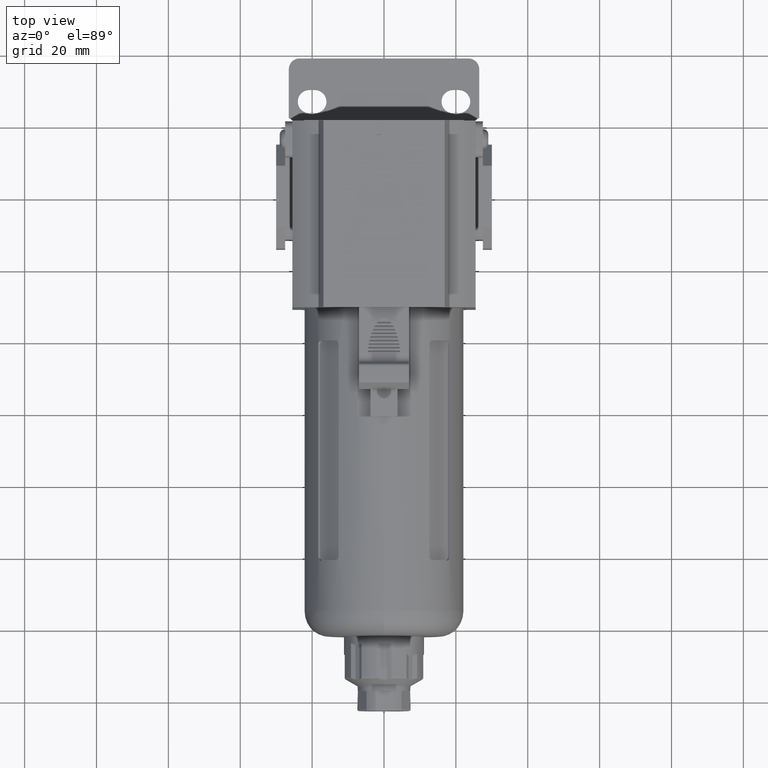
[diagram: clean part render]
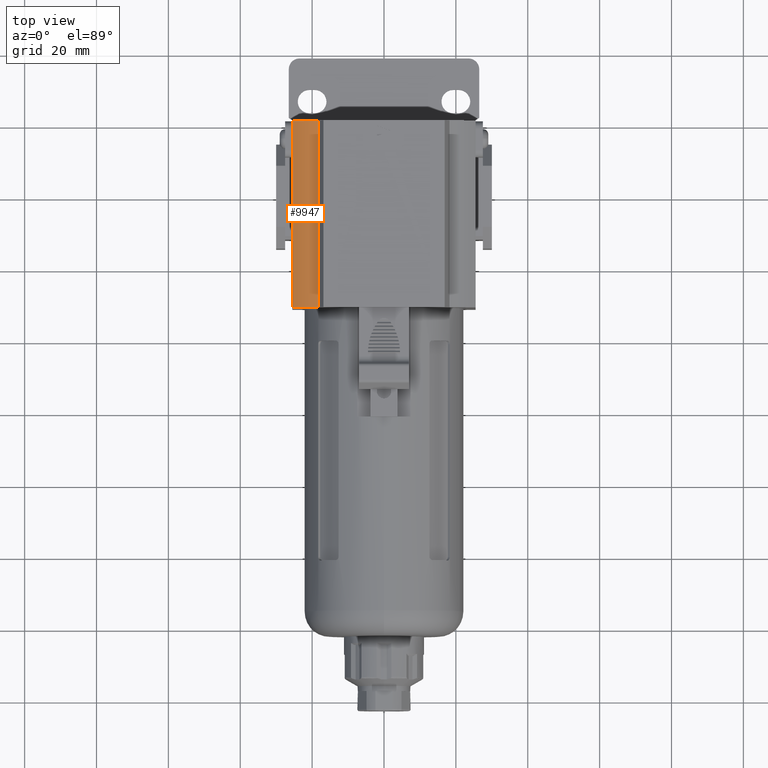
[diagram: same view with one face highlighted and labeled with its STEP entity id]
A machine part, top view. The second image highlights one B-rep face of the part: STEP entity #9947.
In plain terms, the highlighted cylindrical surface (partial cylindrical patch) has radius 20 mm, axis along (-0, 1, -0).
Its self-contained STEP definition (entity closure, byte-faithful):
#122 = CARTESIAN_POINT ( 'NONE',  ( -12.44075424135393600, 21.00000000000000000, 3.852191570551038300 ) ) ;
#179 = VECTOR ( 'NONE', #1844, 1000.000000000000000 ) ;
#217 = VECTOR ( 'NONE', #12050, 1000.000000000000000 ) ;
#279 = DIRECTION ( 'NONE',  ( 9.130123557772670800E-017, -1.000000000000000000, -0.0000000000000000000 ) ) ;
#316 = EDGE_CURVE ( 'NONE', #1362, #476, #10180, .T. ) ;
#476 = VERTEX_POINT ( 'NONE', #6152 ) ;
#630 = FACE_OUTER_BOUND ( 'NONE', #8295, .T. ) ;
#664 = CARTESIAN_POINT ( 'NONE',  ( -12.44075424135393200, -31.00000000000000400, 3.852191570551038300 ) ) ;
#1080 = DIRECTION ( 'NONE',  ( -1.000000000000000000, -1.734723475976807300E-016, 0.0000000000000000000 ) ) ;
#1362 = VERTEX_POINT ( 'NONE', #6516 ) ;
#1653 = DIRECTION ( 'NONE',  ( -9.130123557772672000E-017, 1.000000000000000000, -0.0000000000000000000 ) ) ;
#1772 = VERTEX_POINT ( 'NONE', #7505 ) ;
#1844 = DIRECTION ( 'NONE',  ( -9.130123557772672000E-017, 1.000000000000000000, -0.0000000000000000000 ) ) ;
#3980 = CIRCLE ( 'NONE', #10560, 19.99999999999999600 ) ;
#5230 = LINE ( 'NONE', #8280, #217 ) ;
#5925 = CARTESIAN_POINT ( 'NONE',  ( -12.44075424135393200, -31.00000000000000400, 3.852191570551038300 ) ) ;
#6152 = CARTESIAN_POINT ( 'NONE',  ( -18.21668986678495700, 21.00000000000000000, 23.00000000000000000 ) ) ;
#6420 = EDGE_CURVE ( 'NONE', #10899, #1772, #5230, .T. ) ;
#6516 = CARTESIAN_POINT ( 'NONE',  ( -18.21668986678495400, -31.00000000000000400, 23.00000000000000000 ) ) ;
#6704 = DIRECTION ( 'NONE',  ( 9.130123557772670800E-017, -1.000000000000000000, -0.0000000000000000000 ) ) ;
#6866 = DIRECTION ( 'NONE',  ( -1.000000000000000000, -1.734723475976807800E-016, 0.0000000000000000000 ) ) ;
#7192 = ORIENTED_EDGE ( 'NONE', *, *, #10219, .F. ) ;
#7505 = CARTESIAN_POINT ( 'NONE',  ( -25.49999999999999600, 21.00000000000000000, 18.99999999999999600 ) ) ;
#7749 = ORIENTED_EDGE ( 'NONE', *, *, #6420, .F. ) ;
#8173 = DIRECTION ( 'NONE',  ( -1.000000000000000000, -1.734723475976807800E-016, 0.0000000000000000000 ) ) ;
#8280 = CARTESIAN_POINT ( 'NONE',  ( -25.49999999999999300, -31.00000000000000400, 18.99999999999999600 ) ) ;
#8295 = EDGE_LOOP ( 'NONE', ( #8898, #7749, #7192, #11594 ) ) ;
#8410 = CARTESIAN_POINT ( 'NONE',  ( -25.49999999999999300, -31.00000000000000400, 18.99999999999999600 ) ) ;
#8898 = ORIENTED_EDGE ( 'NONE', *, *, #8983, .T. ) ;
#8974 = AXIS2_PLACEMENT_3D ( 'NONE', #664, #1653, #8173 ) ;
#8983 = EDGE_CURVE ( 'NONE', #476, #1772, #3980, .T. ) ;
#9947 = ADVANCED_FACE ( 'NONE', ( #630 ), #10039, .T. ) ;
#10039 = CYLINDRICAL_SURFACE ( 'NONE', #8974, 19.99999999999999300 ) ;
#10180 = LINE ( 'NONE', #11330, #179 ) ;
#10219 = EDGE_CURVE ( 'NONE', #1362, #10899, #10505, .T. ) ;
#10505 = CIRCLE ( 'NONE', #10656, 19.99999999999999300 ) ;
#10560 = AXIS2_PLACEMENT_3D ( 'NONE', #122, #6704, #1080 ) ;
#10656 = AXIS2_PLACEMENT_3D ( 'NONE', #5925, #279, #6866 ) ;
#10899 = VERTEX_POINT ( 'NONE', #8410 ) ;
#11330 = CARTESIAN_POINT ( 'NONE',  ( -18.21668986678495400, -31.00000000000000400, 23.00000000000000000 ) ) ;
#11594 = ORIENTED_EDGE ( 'NONE', *, *, #316, .T. ) ;
#12050 = DIRECTION ( 'NONE',  ( -9.130123557772672000E-017, 1.000000000000000000, -0.0000000000000000000 ) ) ;